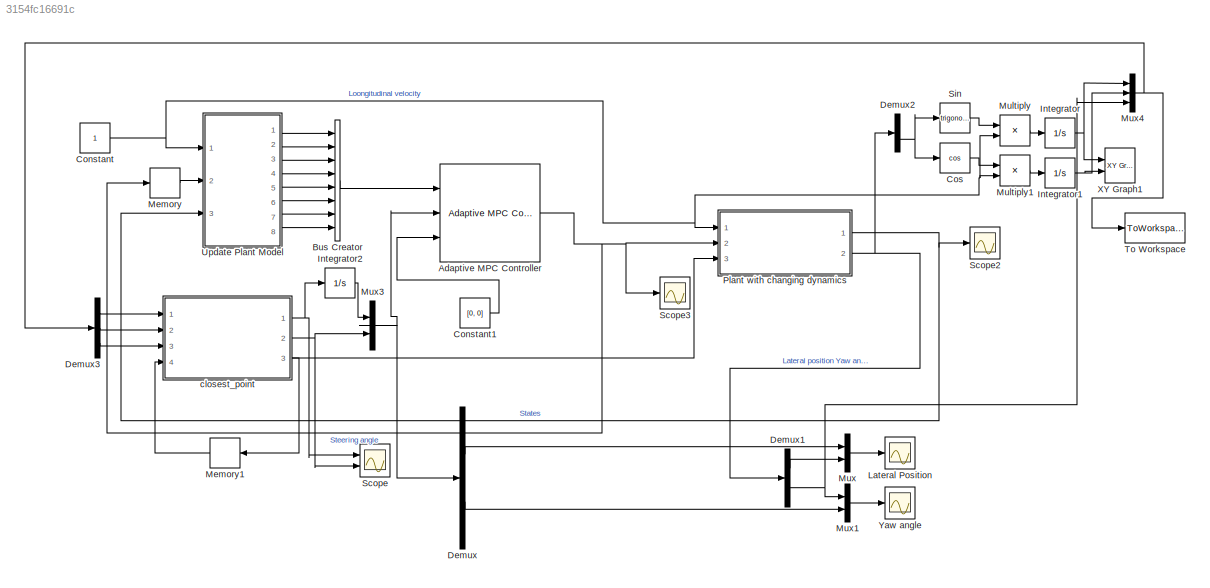
MODEL slx_3154fc16691c
KIND model
CONFIG AbsTol = auto
CONFIG EnableMultiTasking = off
CONFIG FixedStep = 0.01
CONFIG MaxStep = auto
CONFIG MinStep = auto
CONFIG RelTol = 1e-3
CONFIG SampleTimeConstraint = Unconstrained
CONFIG Solver = FixedStepAuto
CONFIG SolverName = FixedStepAuto
CONFIG StartTime = 0.0
CONFIG StopTime = 360
BLOCK [Reference] Adaptive MPC Controller  REF=mpclib/Adaptive MPC Controller  (lib defined in mdl_ae329e0e0455)
  Ports = [3, 1]
  SCDEnableBlockLinearizationSpecification = on
  SourceBlock = mpclib/Adaptive MPC Controller
  SourceProductBaseCode = MP
  SourceProductName = Model Predictive Control Toolbox
  SourceType = Adaptive MPC
BLOCK [BusCreator] Bus Creator
  DisplayOption = bar
  InheritFromInputs = on
  Inputs = 8
  Ports = [8, 1]
BLOCK [Constant] Constant
BLOCK [Constant] Constant1
  Value = [0, 0]
BLOCK [Trigonometry] Cos
  Operator = cos
  Ports = [1, 1]
BLOCK [Demux] Demux
  DisplayOption = bar
  Outputs = 2
  Ports = [1, 2]
BLOCK [Demux] Demux1
  DisplayOption = bar
  Outputs = 2
  Ports = [1, 2]
BLOCK [Demux] Demux2
  DisplayOption = bar
  Outputs = 2
  Ports = [1, 2]
BLOCK [Demux] Demux3
  DisplayOption = bar
  Outputs = 3
  Ports = [1, 3]
BLOCK [Integrator] Integrator
  Ports = [1, 1]
BLOCK [Integrator] Integrator1
  Ports = [1, 1]
BLOCK [Integrator] Integrator2
  Ports = [1, 1]
BLOCK [Scope] Lateral Position
  Floating = off
  NumInputPorts = 1
  Ports = [1]
  ScopeSpecificationString = Simulink.scopes.TimeScopeBlockCfg('CurrentConfiguration', extmgr.ConfigurationSet(extmgr.Configuration('Core','General UI',true),extmgr.Configuration('Core','Source UI',true),extmgr.Configuration('Sources','WiredSimulink',true),extmgr.Configuration('Visuals','Time Domain',true,'SerializedDisplays',{struct('MinYLimReal','6.48955','MaxYLimReal','43.20164','YLabelReal','','MinYLimMag','6.48955','MaxY...<+1409ch>
BLOCK [Memory] Memory
BLOCK [Memory] Memory1
  InitialCondition = 30
BLOCK [Product] Multiply
  InputSameDT = off
  OutDataTypeStr = Inherit: Inherit via internal rule
  Ports = [2, 1]
  RndMeth = Floor
  SaturateOnIntegerOverflow = off
BLOCK [Product] Multiply1
  InputSameDT = off
  OutDataTypeStr = Inherit: Inherit via internal rule
  Ports = [2, 1]
  RndMeth = Floor
  SaturateOnIntegerOverflow = off
BLOCK [Mux] Mux
  DisplayOption = bar
  Inputs = 2
  Ports = [2, 1]
BLOCK [Mux] Mux1
  DisplayOption = bar
  Inputs = 2
  Ports = [2, 1]
BLOCK [Mux] Mux3
  DisplayOption = bar
  Inputs = 2
  Ports = [2, 1]
BLOCK [Mux] Mux4
  DisplayOption = bar
  Inputs = 3
  Ports = [3, 1]
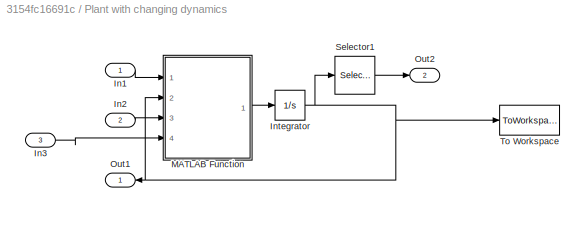
BLOCK [SubSystem] Plant with changing dynamics
  Ports = [3, 2]
  RequestExecContextInheritance = off
BLOCK [Inport] Plant with changing dynamics/In1
  IconDisplay = Port number
BLOCK [Inport] Plant with changing dynamics/In2
  IconDisplay = Port number
  Port = 2
BLOCK [Inport] Plant with changing dynamics/In3
  IconDisplay = Port number
  Port = 3
BLOCK [Integrator] Plant with changing dynamics/Integrator
  Ports = [1, 1]
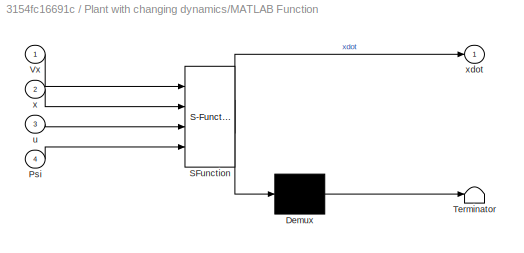
BLOCK [SubSystem] Plant with changing dynamics/MATLAB Function
  ErrorFcn = Stateflow.Translate.translate
  PermitHierarchicalResolution = ExplicitOnly
  Ports = [4, 1]
  RequestExecContextInheritance = off
  SFBlockType = MATLAB Function
  TreatAsAtomicUnit = on
BLOCK [Demux] Plant with changing dynamics/MATLAB Function/ Demux 
  Outputs = 1
  Ports = [1, 1]
BLOCK [S-Function] Plant with changing dynamics/MATLAB Function/ SFunction 
  EnableBusSupport = on
  FunctionName = sf_sfun
  PortCounts = [4 2]
  Ports = [4, 2]
  SFcnIsStateOwnerBlock = off
  SFunctionDeploymentMode = off
  Tag = Stateflow S-Function Adaptive_MPC5 1
BLOCK [Terminator] Plant with changing dynamics/MATLAB Function/ Terminator 
BLOCK [Inport] Plant with changing dynamics/MATLAB Function/Psi
  IconDisplay = Port number
  Port = 4
BLOCK [Inport] Plant with changing dynamics/MATLAB Function/Vx
  IconDisplay = Port number
BLOCK [Inport] Plant with changing dynamics/MATLAB Function/u
  IconDisplay = Port number
  Port = 3
BLOCK [Inport] Plant with changing dynamics/MATLAB Function/x
  IconDisplay = Port number
  Port = 2
BLOCK [Outport] Plant with changing dynamics/MATLAB Function/xdot
  IconDisplay = Port number
BLOCK [Outport] Plant with changing dynamics/Out1
  IconDisplay = Port number
BLOCK [Outport] Plant with changing dynamics/Out2
  IconDisplay = Port number
  Port = 2
BLOCK [Selector] Plant with changing dynamics/Selector1
  IndexOptions = Index vector (dialog)
  Indices = [4 2]
  InputPortWidth = 4
  OutputSizes = 1
  Ports = [1, 1]
BLOCK [ToWorkspace] Plant with changing dynamics/To Workspace
  FixptAsFi = on
  MaxDataPoints = inf
  Ports = [1]
  SampleTime = -1
  Save2DSignal = 3-D array (concatenate along third dimension)
  SaveFormat = Timeseries
  VariableName = longPos
BLOCK [Scope] Scope
  Floating = off
  NumInputPorts = 2
  Ports = [2]
  ScopeSpecificationString = Simulink.scopes.TimeScopeBlockCfg('CurrentConfiguration', extmgr.ConfigurationSet(extmgr.Configuration('Core','General UI',true),extmgr.Configuration('Core','Source UI',true),extmgr.Configuration('Sources','WiredSimulink',true,'DataLoggingVariableName','ScopeData1'),extmgr.Configuration('Visuals','Time Domain',true,'SerializedDisplays',{struct('MinYLimReal','-0.16257','MaxYLimReal','0.0557','YLabe...<+1549ch>
BLOCK [Scope] Scope2
  Floating = off
  NumInputPorts = 1
  Ports = [1]
  ScopeSpecificationString = Simulink.scopes.TimeScopeBlockCfg('CurrentConfiguration', extmgr.ConfigurationSet(extmgr.Configuration('Core','General UI',true),extmgr.Configuration('Core','Source UI',true),extmgr.Configuration('Sources','WiredSimulink',true,'DataLoggingVariableName','ScopeData1'),extmgr.Configuration('Visuals','Time Domain',true,'SerializedDisplays',{struct('MinYLimReal','-43.21394','MaxYLimReal','20.66632','YL...<+1423ch>
BLOCK [Scope] Scope3
  Floating = off
  NumInputPorts = 1
  Ports = [1]
  ScopeSpecificationString = Simulink.scopes.TimeScopeBlockCfg('CurrentConfiguration', extmgr.ConfigurationSet(extmgr.Configuration('Core','General UI',true),extmgr.Configuration('Core','Source UI',true),extmgr.Configuration('Sources','WiredSimulink',true,'DataLoggingVariableName','ScopeData2'),extmgr.Configuration('Visuals','Time Domain',true,'SerializedDisplays',{struct('MinYLimReal','-0.07539','MaxYLimReal','0.68701','YLab...<+1509ch>
BLOCK [Trigonometry] Sin
  Ports = [1, 1]
BLOCK [ToWorkspace] To Workspace
  FixptAsFi = on
  MaxDataPoints = inf
  Ports = [1]
  SampleTime = -1
  Save2DSignal = 3-D array (concatenate along third dimension)
  VariableName = posOri
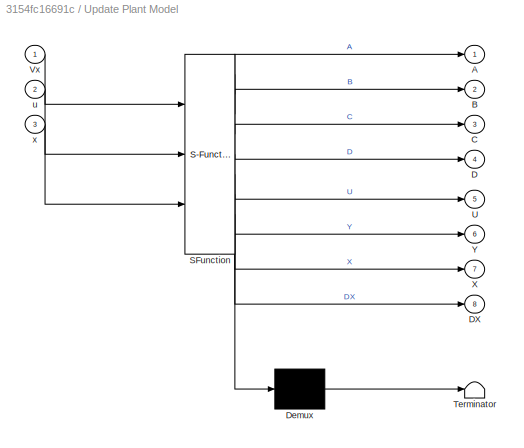
BLOCK [SubSystem] Update Plant Model
  ErrorFcn = Stateflow.Translate.translate
  PermitHierarchicalResolution = ExplicitOnly
  Ports = [3, 8]
  RequestExecContextInheritance = off
  SFBlockType = MATLAB Function
  TreatAsAtomicUnit = on
BLOCK [Demux] Update Plant Model/ Demux 
  Outputs = 1
  Ports = [1, 1]
BLOCK [S-Function] Update Plant Model/ SFunction 
  EnableBusSupport = on
  FunctionName = sf_sfun
  PortCounts = [3 9]
  Ports = [3, 9]
  SFcnIsStateOwnerBlock = off
  SFunctionDeploymentMode = off
  Tag = Stateflow S-Function Adaptive_MPC5 2
BLOCK [Terminator] Update Plant Model/ Terminator 
BLOCK [Outport] Update Plant Model/A
  IconDisplay = Port number
BLOCK [Outport] Update Plant Model/B
  IconDisplay = Port number
  Port = 2
BLOCK [Outport] Update Plant Model/C
  IconDisplay = Port number
  Port = 3
BLOCK [Outport] Update Plant Model/D
  IconDisplay = Port number
  Port = 4
BLOCK [Outport] Update Plant Model/DX
  IconDisplay = Port number
  Port = 8
BLOCK [Outport] Update Plant Model/U
  IconDisplay = Port number
  Port = 5
BLOCK [Inport] Update Plant Model/Vx
  IconDisplay = Port number
BLOCK [Outport] Update Plant Model/X
  IconDisplay = Port number
  Port = 7
BLOCK [Outport] Update Plant Model/Y
  IconDisplay = Port number
  Port = 6
BLOCK [Inport] Update Plant Model/u
  IconDisplay = Port number
  Port = 2
BLOCK [Inport] Update Plant Model/x
  IconDisplay = Port number
  Port = 3
BLOCK [Reference] XY Graph1  REF=simulink/Sinks/XY Graph
  Ports = [2]
  SourceBlock = simulink/Sinks/XY Graph
  SourceProductBaseCode = SL
  SourceProductName = Simulink
  SourceType = XY scope.
BLOCK [Scope] Yaw angle
  Floating = off
  NumInputPorts = 1
  Ports = [1]
  ScopeSpecificationString = Simulink.scopes.TimeScopeBlockCfg('CurrentConfiguration', extmgr.ConfigurationSet(extmgr.Configuration('Core','General UI',true),extmgr.Configuration('Core','Source UI',true),extmgr.Configuration('Sources','WiredSimulink',true,'DataLoggingVariableName','ScopeData1'),extmgr.Configuration('Visuals','Time Domain',true,'SerializedDisplays',{struct('MinYLimReal','-4.9973','MaxYLimReal','43.7461','YLabe...<+1421ch>
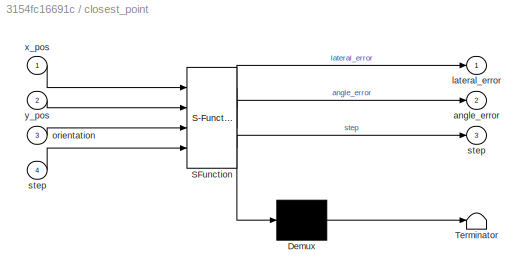
BLOCK [SubSystem] closest_point
  ErrorFcn = Stateflow.Translate.translate
  PermitHierarchicalResolution = ExplicitOnly
  Ports = [4, 3]
  RequestExecContextInheritance = off
  SFBlockType = MATLAB Function
  TreatAsAtomicUnit = on
BLOCK [Demux] closest_point/ Demux 
  Outputs = 1
  Ports = [1, 1]
BLOCK [S-Function] closest_point/ SFunction 
  EnableBusSupport = on
  FunctionName = sf_sfun
  PortCounts = [4 4]
  Ports = [4, 4]
  SFcnIsStateOwnerBlock = off
  SFunctionDeploymentMode = off
  Tag = Stateflow S-Function Adaptive_MPC5 3
BLOCK [Terminator] closest_point/ Terminator 
BLOCK [Outport] closest_point/angle_error
  IconDisplay = Port number
  Port = 2
BLOCK [Outport] closest_point/lateral_error
  IconDisplay = Port number
BLOCK [Inport] closest_point/orientation
  IconDisplay = Port number
  Port = 3
BLOCK [Outport] closest_point/step
  IconDisplay = Port number
  Port = 3
BLOCK [Inport] closest_point/step 
  IconDisplay = Port number
  Port = 4
BLOCK [Inport] closest_point/x_pos
  IconDisplay = Port number
BLOCK [Inport] closest_point/y_pos
  IconDisplay = Port number
  Port = 2
NET Adaptive MPC Controller:1 -> Memory:1, Plant with changing dynamics:2, Scope3:1
LINE Bus Creator:1 -> Adaptive MPC Controller:1
LINE Constant1:1 -> Adaptive MPC Controller:3
NET Constant:1 -> Multiply1:2, Multiply:2, Plant with changing dynamics:1, Update Plant Model:1
LINE Cos:1 -> Multiply1:1
LINE Demux1:1 -> Mux:2
NET Demux1:2 -> Mux1:1, Mux4:3
NET Demux2:2 -> Cos:1, Sin:1
LINE Demux3:1 -> closest_point:1
LINE Demux3:2 -> closest_point:2
LINE Demux3:3 -> closest_point:3
LINE Demux:1 -> Mux:1
LINE Demux:2 -> Mux1:2
NET Integrator1:1 -> Mux4:2, XY Graph1:2
LINE Integrator2:1 -> Mux3:1
NET Integrator:1 -> Mux4:1, XY Graph1:1
LINE Memory1:1 -> closest_point:4
LINE Memory:1 -> Update Plant Model:2
LINE Multiply1:1 -> Integrator1:1
LINE Multiply:1 -> Integrator:1
LINE Mux1:1 -> Yaw angle:1
NET Mux3:1 -> Adaptive MPC Controller:2, Demux:1
NET Mux4:1 -> Demux3:1, To Workspace:1
LINE Mux:1 -> Lateral Position:1
LINE Plant with changing dynamics/In1:1 -> Plant with changing dynamics/MATLAB Function:1
LINE Plant with changing dynamics/In2:1 -> Plant with changing dynamics/MATLAB Function:3
LINE Plant with changing dynamics/In3:1 -> Plant with changing dynamics/MATLAB Function:4
NET Plant with changing dynamics/Integrator:1 -> Plant with changing dynamics/MATLAB Function:2, Plant with changing dynamics/Out1:1, Plant with changing dynamics/Selector1:1, Plant with changing dynamics/To Workspace:1
LINE Plant with changing dynamics/MATLAB Function:1 -> Plant with changing dynamics/Integrator:1
LINE Plant with changing dynamics/Selector1:1 -> Plant with changing dynamics/Out2:1
NET Plant with changing dynamics:1 -> Scope2:1, Update Plant Model:3
NET Plant with changing dynamics:2 -> Demux1:1, Demux2:1
LINE Sin:1 -> Multiply:1
LINE Update Plant Model:1 -> Bus Creator:1
LINE Update Plant Model:2 -> Bus Creator:2
LINE Update Plant Model:3 -> Bus Creator:3
LINE Update Plant Model:4 -> Bus Creator:4
LINE Update Plant Model:5 -> Bus Creator:5
LINE Update Plant Model:6 -> Bus Creator:6
LINE Update Plant Model:7 -> Bus Creator:7
LINE Update Plant Model:8 -> Bus Creator:8
NET closest_point:1 -> Integrator2:1, Scope:1
NET closest_point:2 -> Mux3:2, Plant with changing dynamics:3, Scope:2
LINE closest_point:3 -> Memory1:1
note: NET lines group one-source signal fan-out (src -> all destinations, sorted); 1:1 wires keep LINE
CHART Plant with
changing dynamics/MATLAB Function states=1 transitions=1
  STATE_LABEL 'eML_blk_kernel()'
  STATE_LABEL "SCRIPT:\nfunction xdot = fcn(Vx,x,u, Psi)\n\n% Model parameters\nm = 300;\nIz = 500;%2875;\nlf = 1.2;\nlr = 1.0;\nCf = 19000/5;\nCr = 33000/5;\n\n% Continuous-time model\nA = [-(2*Cf+2*Cr)/m/Vx, 0, -Vx-(2*Cf*lf-2*Cr*lr)/m/Vx, 0;\n     0, 0, 1, 0;\n     -(2*Cf*lf-2*Cr*lr)/Iz/Vx, 0, -(2*Cf*lf^2+2*Cr*lr^2)/Iz/Vx, 0;\n     1, Vx, 0, 0];\nB = [2*Cf/m 0 2*Cf*lf/Iz 0]';  \nC = [0 0 0 1; 0 1 0 0];\nD = zeros(2,1);\n%x(2) = ...<+39ch>"
CHART Update Plant Model states=1 transitions=1
  STATE_LABEL 'eML_blk_kernel()'
  STATE_LABEL "SCRIPT:\nfunction [A,B,C,D,U,Y,X,DX] = fcn(Vx,u,x)\n% Sample time\nTs = 0.1;\n\n% Model parameters\nm = 1575;\nIz = 2875;\nlf = 1.2;\nlr = 1.6;\nCf = 19000;\nCr = 33000;\n\n% Continuous-time model\nAc = [-(2*Cf+2*Cr)/m/Vx, 0, -Vx-(2*Cf*lf-2*Cr*lr)/m/Vx, 0;\n     0, 0, 1, 0;\n     -(2*Cf*lf-2*Cr*lr)/Iz/Vx, 0, -(2*Cf*lf^2+2*Cr*lr^2)/Iz/Vx, 0;\n     1, Vx, 0, 0];\nBc = [2*Cf/m 0 2*Cf*lf/Iz 0]';   \nCc = [0 0 0 1; 0 1 0...<+278ch>"
CHART closest_point states=1 transitions=1
  STATE_LABEL 'eML_blk_kernel()'
  STATE_LABEL 'SCRIPT:\nfunction [lateral_error, angle_error, step] = closest_point(x_pos, y_pos, orientation, step)\n\n%%% Circle\n%x=cosd(1:360)*9+9;\n%y=sind(1:360)*9;\n%trajectory_angle=(1:360)/360*2*pi;\n\n%%% SKIDPAD\ny= [0:0.1:9, cosd((1:360)-90)*9+9];\nx= [zeros(1,91),sind((1:360)-90)*9+9];\ntrajectory_angle = [ones(1,91)*pi,(1:360)/360*2*pi];\n\nrange = 5;\n\n%new_x = x(step-range:step+range);\n%new_y = y(step-range:st...<+366ch>'
